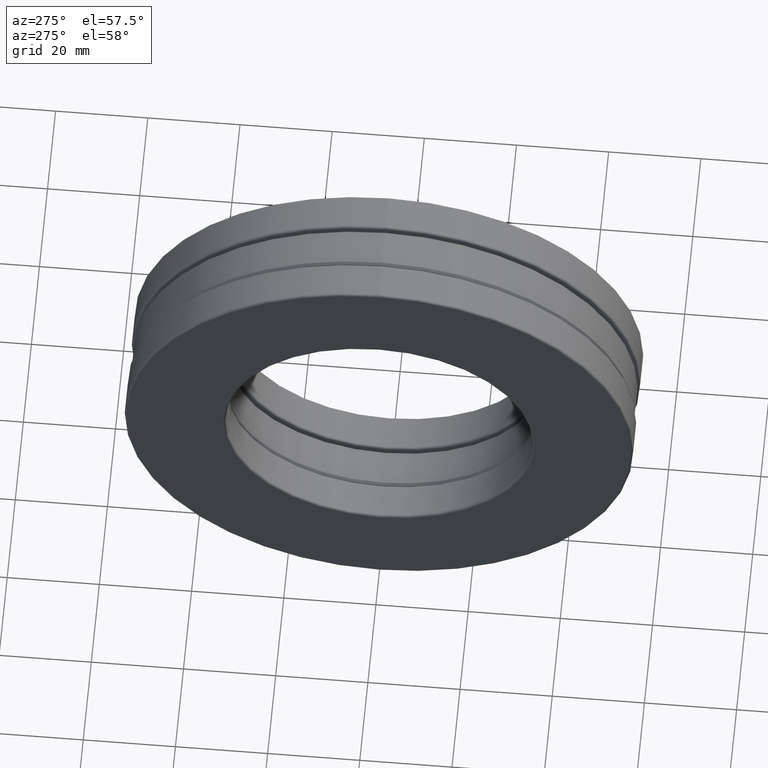
[diagram: clean part render]
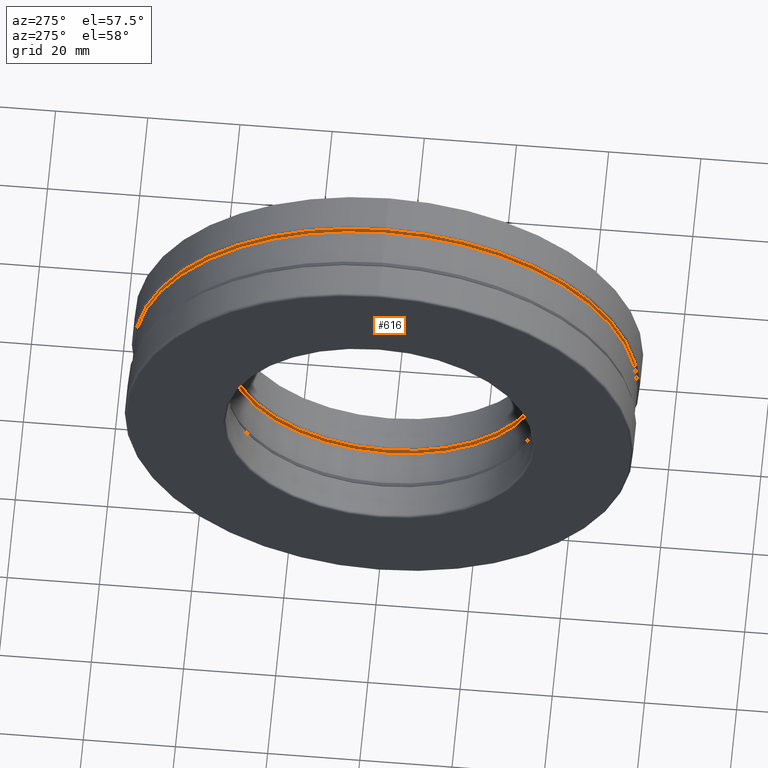
[diagram: same view with one face highlighted and labeled with its STEP entity id]
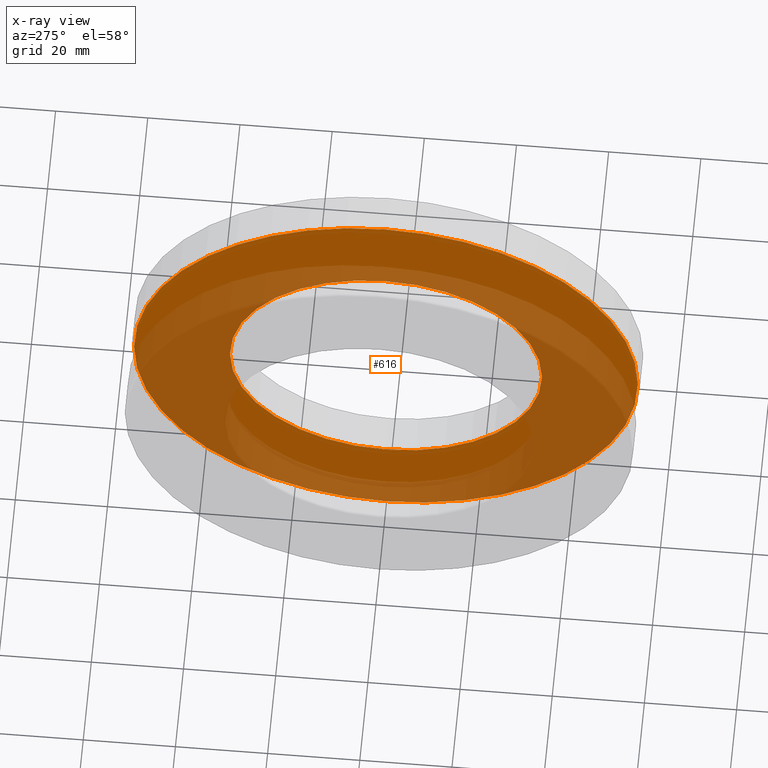
[diagram: x-ray of the same camera — body ghosted, the highlighted face saturated]
A machine part, auxiliary view. The second image highlights one B-rep face of the part: STEP entity #616.
The next image is the same camera in x-ray: the body ghosted, the highlighted face saturated — about 58% of this face is hidden behind the body in this view.
In plain terms, the highlighted planar face has unit normal (1, 0, 0).
Its self-contained STEP definition (entity closure, byte-faithful):
#7 = AXIS2_PLACEMENT_3D ( 'NONE', #832, #957, #159 ) ;
#82 = DIRECTION ( 'NONE',  ( -1.000000000000000000, -0.0000000000000000000, -0.0000000000000000000 ) ) ;
#106 = ORIENTED_EDGE ( 'NONE', *, *, #501, .T. ) ;
#159 = DIRECTION ( 'NONE',  ( 0.0000000000000000000, 0.0000000000000000000, 1.000000000000000000 ) ) ;
#210 = AXIS2_PLACEMENT_3D ( 'NONE', #754, #431, #524 ) ;
#431 = DIRECTION ( 'NONE',  ( 1.000000000000000000, 0.0000000000000000000, 0.0000000000000000000 ) ) ;
#446 = CARTESIAN_POINT ( 'NONE',  ( 0.1875000000000000300, 0.0000000000000000000, 1.332500000000000000 ) ) ;
#501 = EDGE_CURVE ( 'NONE', #1281, #1281, #1074, .T. ) ;
#524 = DIRECTION ( 'NONE',  ( 0.0000000000000000000, 0.0000000000000000000, -1.000000000000000000 ) ) ;
#573 = DIRECTION ( 'NONE',  ( 0.0000000000000000000, 0.0000000000000000000, 1.000000000000000000 ) ) ;
#616 = ADVANCED_FACE ( 'NONE', ( #1086, #679 ), #854, .F. ) ;
#679 = FACE_OUTER_BOUND ( 'NONE', #1125, .T. ) ;
#754 = CARTESIAN_POINT ( 'NONE',  ( 0.1874999999999999700, 7.814210508192978300E-018, 0.0000000000000000000 ) ) ;
#832 = CARTESIAN_POINT ( 'NONE',  ( 0.1875000000000000300, 0.0000000000000000000, 0.0000000000000000000 ) ) ;
#854 = PLANE ( 'NONE',  #210 ) ;
#957 = DIRECTION ( 'NONE',  ( -1.000000000000000000, -0.0000000000000000000, -0.0000000000000000000 ) ) ;
#1040 = EDGE_CURVE ( 'NONE', #1410, #1410, #1300, .T. ) ;
#1074 = CIRCLE ( 'NONE', #1135, 2.151875000000000000 ) ;
#1086 = FACE_BOUND ( 'NONE', #1284, .T. ) ;
#1116 = CARTESIAN_POINT ( 'NONE',  ( 0.1874999999999999700, 0.0000000000000000000, 2.151875000000000000 ) ) ;
#1125 = EDGE_LOOP ( 'NONE', ( #106 ) ) ;
#1135 = AXIS2_PLACEMENT_3D ( 'NONE', #1401, #82, #573 ) ;
#1281 = VERTEX_POINT ( 'NONE', #1116 ) ;
#1284 = EDGE_LOOP ( 'NONE', ( #1442 ) ) ;
#1300 = CIRCLE ( 'NONE', #7, 1.332500000000000000 ) ;
#1401 = CARTESIAN_POINT ( 'NONE',  ( 0.1874999999999999700, 0.0000000000000000000, 0.0000000000000000000 ) ) ;
#1410 = VERTEX_POINT ( 'NONE', #446 ) ;
#1442 = ORIENTED_EDGE ( 'NONE', *, *, #1040, .F. ) ;